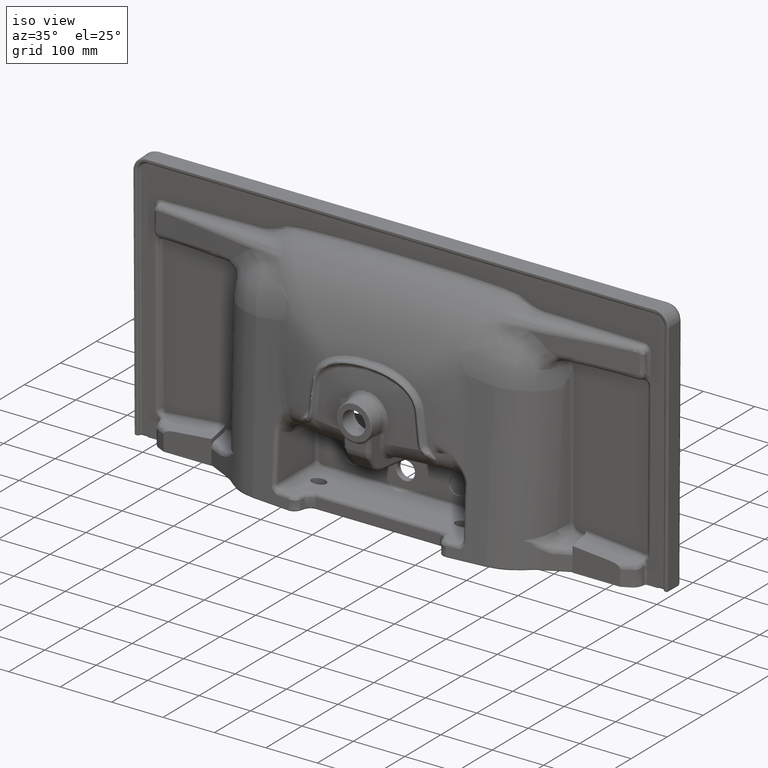
[diagram: clean part render]
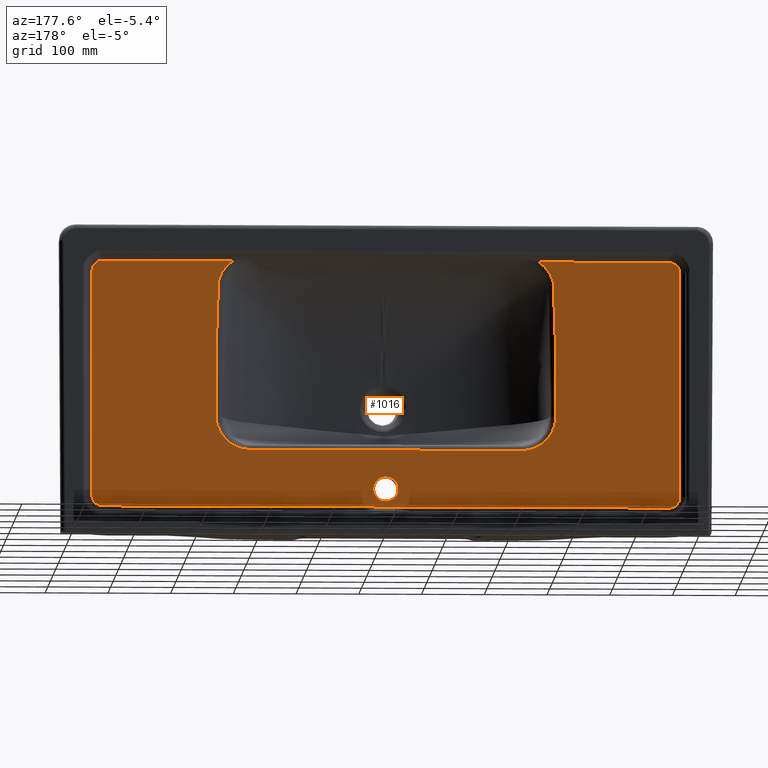
[diagram: tour spotlight — one face highlighted and labeled with its STEP entity id]
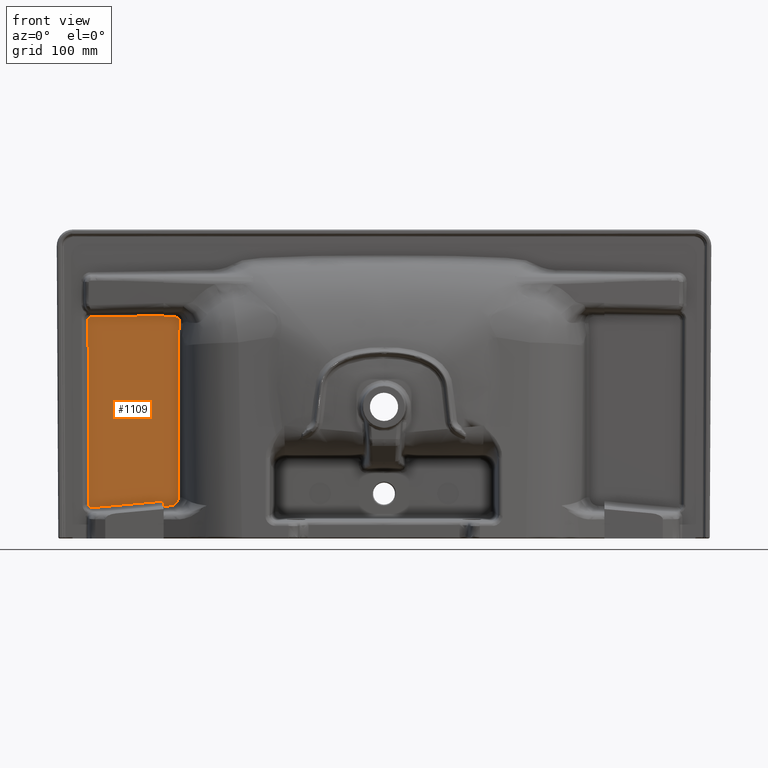
[diagram: tour spotlight — one face highlighted and labeled with its STEP entity id]
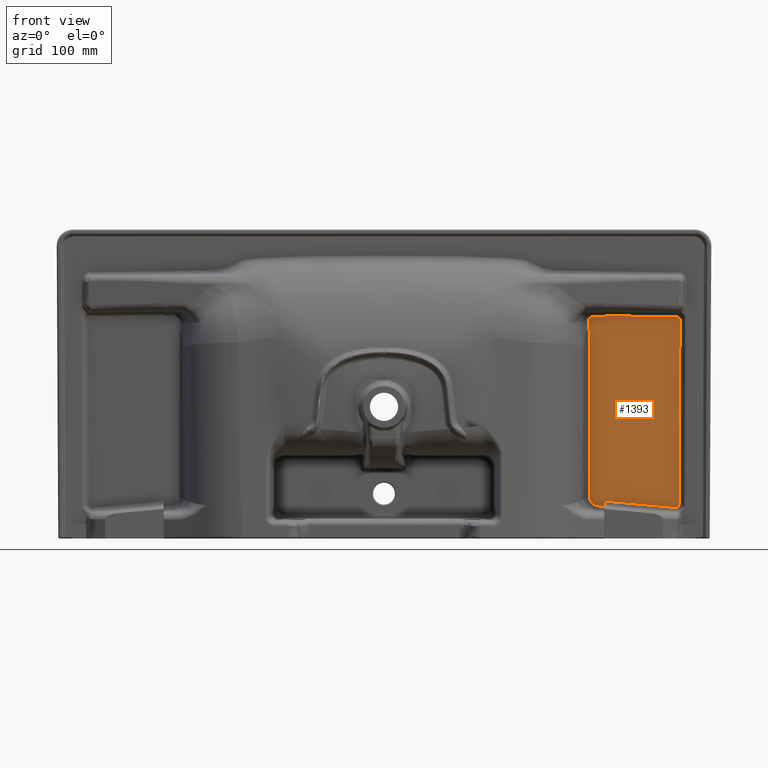
[diagram: tour spotlight — one face highlighted and labeled with its STEP entity id]
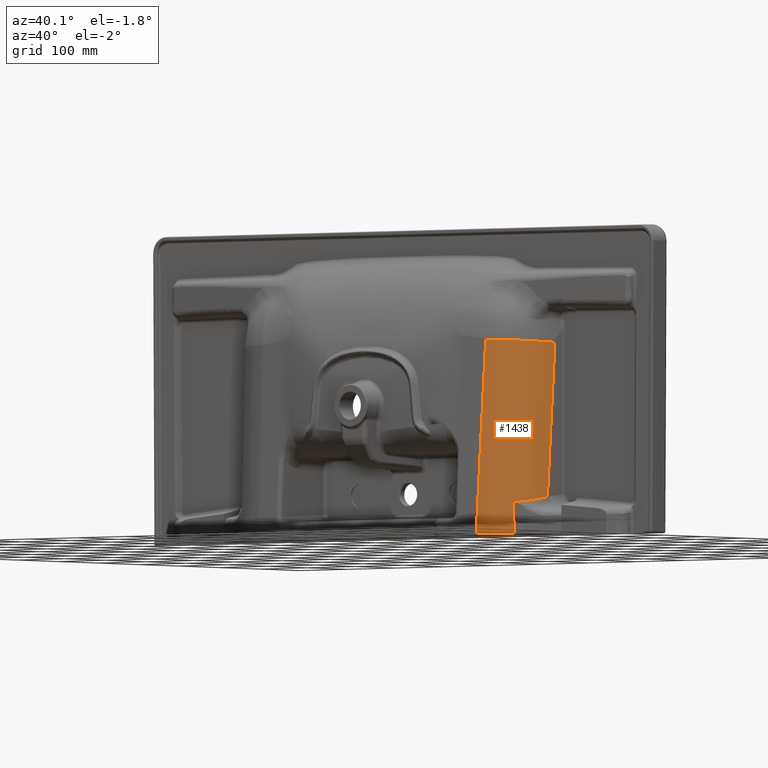
[diagram: tour spotlight — one face highlighted and labeled with its STEP entity id]
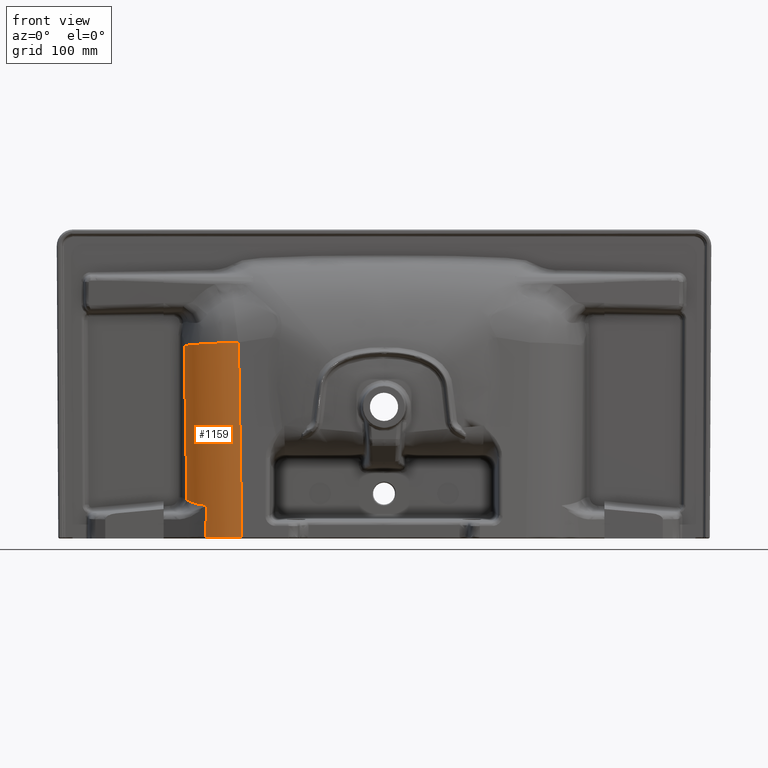
[diagram: tour spotlight — one face highlighted and labeled with its STEP entity id]
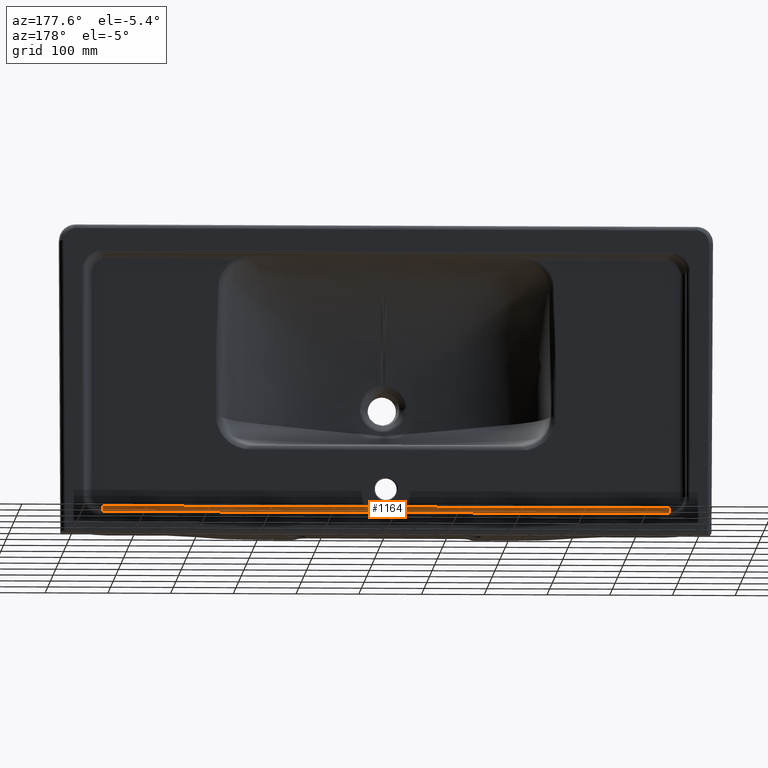
[diagram: tour spotlight — one face highlighted and labeled with its STEP entity id]
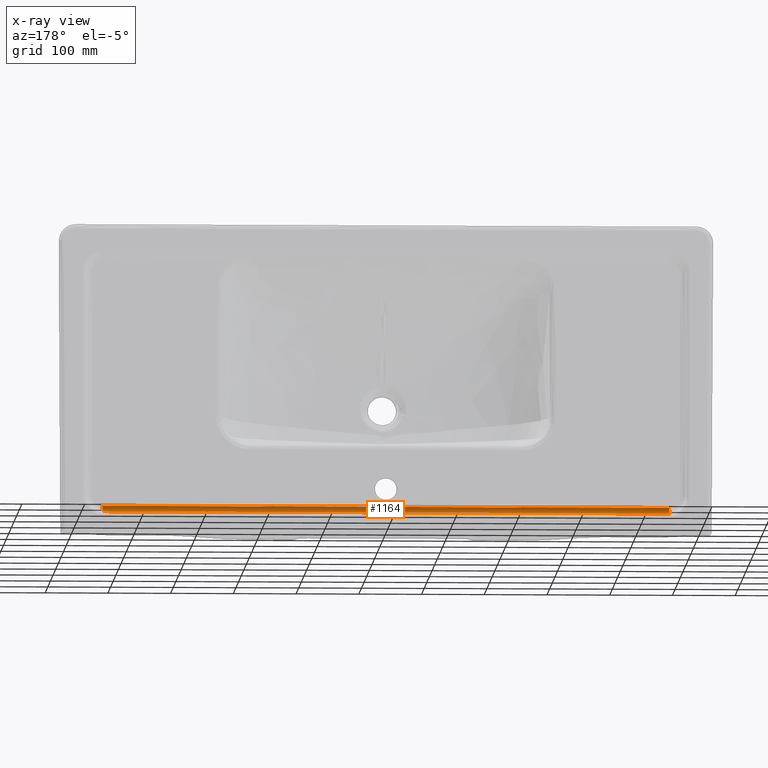
[diagram: x-ray of the same camera — body ghosted, this tour face saturated]
A machine part: a face-by-face anatomy tour. The part has 573 B-rep faces; the first image is the clean iso view, then the 6 largest visible faces are spotlighted one at a time (largest first), each with its STEP entity span.

Face 1 — auxiliary view, entity #1016. In plain terms, the highlighted planar face has unit normal (0, 1, 0).
Definition (entity closure, byte-faithful):
#606=PLANE('',#8693);
#703=FACE_BOUND('',#2195,.T.);
#704=FACE_BOUND('',#2196,.T.);
#724=CIRCLE('',#8668,19.5);
#729=CIRCLE('',#8691,17.);
#730=CIRCLE('',#8692,17.);
#1016=ADVANCED_FACE('',(#703,#704),#606,.T.);
#2195=EDGE_LOOP('',(#3814));
#2196=EDGE_LOOP('',(#3815,#3816,#3817,#3818,#3819,#3820,#3821,#3822,#3823,
#3824,#3825,#3826,#3827,#3828,#3829,#3830));
#2818=B_SPLINE_CURVE_WITH_KNOTS('',3,(#10964,#10965,#10966,#10967,#10968,
#10969,#10970),.UNSPECIFIED.,.F.,.F.,(4,3,4),(0.,0.488828419280423,1.),
 .UNSPECIFIED.);
#2819=B_SPLINE_CURVE_WITH_KNOTS('',3,(#10972,#10973,#10974,#10975,#10976,
#10977,#10978,#10979),.UNSPECIFIED.,.F.,.F.,(4,2,2,4),(0.,0.25,0.5,1.),
 .UNSPECIFIED.);
#2820=B_SPLINE_CURVE_WITH_KNOTS('',3,(#10981,#10982,#10983,#10984,#10985,
#10986,#10987,#10988,#10989,#10990),.UNSPECIFIED.,.F.,.F.,(4,3,3,4),(0.,
0.198783833394252,0.993919166971261,1.),.UNSPECIFIED.);
#2821=B_SPLINE_CURVE_WITH_KNOTS('',3,(#10992,#10993,#10994,#10995,#10996,
#10997,#10998,#10999,#11000,#11001),.UNSPECIFIED.,.F.,.F.,(4,3,3,4),(0.,
0.115408020605627,0.860685326046435,1.),.UNSPECIFIED.);
#2822=B_SPLINE_CURVE_WITH_KNOTS('',3,(#11003,#11004,#11005,#11006,#11007,
#11008,#11009,#11010,#11011,#11012,#11013,#11014,#11015,#11016,#11017,#11018,
#11019,#11020,#11021,#11022),.UNSPECIFIED.,.F.,.F.,(4,2,2,2,2,2,2,2,2,4),
(0.,0.0624999999999998,0.0937499999999998,0.125,0.1875,0.21875,0.25,0.375,
0.5,1.),.UNSPECIFIED.);
#2823=B_SPLINE_CURVE_WITH_KNOTS('',3,(#11024,#11025,#11026,#11027,#11028,
#11029,#11030,#11031,#11032,#11033,#11034,#11035,#11036,#11037,#11038,#11039),
 .UNSPECIFIED.,.F.,.F.,(4,2,2,2,2,2,2,4),(0.,0.25,0.375,0.5,0.625,0.75,
0.875,1.),.UNSPECIFIED.);
#2824=B_SPLINE_CURVE_WITH_KNOTS('',3,(#11043,#11044,#11045,#11046,#11047,
#11048,#11049,#11050,#11051,#11052,#11053,#11054,#11055,#11056,#11057,#11058),
 .UNSPECIFIED.,.F.,.F.,(4,2,2,2,2,2,2,4),(0.,0.249999999999999,0.374999999999999,
0.499999999999999,0.624999999999999,0.75,0.875,1.),.UNSPECIFIED.);
#2825=B_SPLINE_CURVE_WITH_KNOTS('',3,(#11060,#11061,#11062,#11063,#11064,
#11065,#11066,#11067,#11068,#11069,#11070,#11071,#11072,#11073,#11074,#11075,
#11076,#11077,#11078,#11079),.UNSPECIFIED.,.F.,.F.,(4,2,2,2,2,2,2,2,2,4),
(0.,0.0625,0.09375,0.125,0.1875,0.21875,0.25,0.375,0.5,1.),
 .UNSPECIFIED.);
#2826=B_SPLINE_CURVE_WITH_KNOTS('',3,(#11081,#11082,#11083,#11084,#11085,
#11086,#11087,#11088,#11089,#11090),.UNSPECIFIED.,.F.,.F.,(4,3,3,4),(0.,
0.115408020605627,0.860685326046435,1.),.UNSPECIFIED.);
#2827=B_SPLINE_CURVE_WITH_KNOTS('',3,(#11092,#11093,#11094,#11095,#11096,
#11097,#11098,#11099,#11100,#11101),.UNSPECIFIED.,.F.,.F.,(4,3,3,4),(0.,
0.198783833394252,0.993919166971261,1.),.UNSPECIFIED.);
#2828=B_SPLINE_CURVE_WITH_KNOTS('',3,(#11103,#11104,#11105,#11106,#11107,
#11108,#11109,#11110),.UNSPECIFIED.,.F.,.F.,(4,2,2,4),(0.,0.249999999999998,
0.499999999999997,1.),.UNSPECIFIED.);
#2829=B_SPLINE_CURVE_WITH_KNOTS('',3,(#11112,#11113,#11114,#11115,#11116,
#11117,#11118),.UNSPECIFIED.,.F.,.F.,(4,3,4),(0.,0.488828419280423,1.),
 .UNSPECIFIED.);
#3814=ORIENTED_EDGE('',*,*,#7170,.T.);
#3815=ORIENTED_EDGE('',*,*,#7258,.T.);
#3816=ORIENTED_EDGE('',*,*,#7259,.T.);
#3817=ORIENTED_EDGE('',*,*,#7260,.T.);
#3818=ORIENTED_EDGE('',*,*,#7261,.T.);
#3819=ORIENTED_EDGE('',*,*,#7262,.T.);
#3820=ORIENTED_EDGE('',*,*,#7263,.T.);
#3821=ORIENTED_EDGE('',*,*,#7264,.T.);
#3822=ORIENTED_EDGE('',*,*,#7265,.T.);
#3823=ORIENTED_EDGE('',*,*,#7266,.T.);
#3824=ORIENTED_EDGE('',*,*,#7267,.F.);
#3825=ORIENTED_EDGE('',*,*,#7268,.F.);
#3826=ORIENTED_EDGE('',*,*,#7269,.F.);
#3827=ORIENTED_EDGE('',*,*,#7270,.F.);
#3828=ORIENTED_EDGE('',*,*,#7271,.F.);
#3829=ORIENTED_EDGE('',*,*,#7272,.F.);
#3830=ORIENTED_EDGE('',*,*,#7273,.F.);
#6390=VERTEX_POINT('',#9994);
#6477=VERTEX_POINT('',#10960);
#6478=VERTEX_POINT('',#10961);
#6479=VERTEX_POINT('',#10963);
#6480=VERTEX_POINT('',#10971);
#6481=VERTEX_POINT('',#10980);
#6482=VERTEX_POINT('',#10991);
#6483=VERTEX_POINT('',#11002);
#6484=VERTEX_POINT('',#11023);
#6485=VERTEX_POINT('',#11040);
#6486=VERTEX_POINT('',#11042);
#6487=VERTEX_POINT('',#11059);
#6488=VERTEX_POINT('',#11080);
#6489=VERTEX_POINT('',#11091);
#6490=VERTEX_POINT('',#11102);
#6491=VERTEX_POINT('',#11111);
#6492=VERTEX_POINT('',#11119);
#7170=EDGE_CURVE('',#6390,#6390,#724,.T.);
#7258=EDGE_CURVE('',#6477,#6478,#8518,.T.);
#7259=EDGE_CURVE('',#6478,#6479,#729,.T.);
#7260=EDGE_CURVE('',#6479,#6480,#2818,.T.);
#7261=EDGE_CURVE('',#6480,#6481,#2819,.T.);
#7262=EDGE_CURVE('',#6481,#6482,#2820,.T.);
#7263=EDGE_CURVE('',#6482,#6483,#2821,.T.);
#7264=EDGE_CURVE('',#6483,#6484,#2822,.T.);
#7265=EDGE_CURVE('',#6484,#6485,#2823,.T.);
#7266=EDGE_CURVE('',#6485,#6486,#8519,.T.);
#7267=EDGE_CURVE('',#6487,#6486,#2824,.T.);
#7268=EDGE_CURVE('',#6488,#6487,#2825,.T.);
#7269=EDGE_CURVE('',#6489,#6488,#2826,.T.);
#7270=EDGE_CURVE('',#6490,#6489,#2827,.T.);
#7271=EDGE_CURVE('',#6491,#6490,#2828,.T.);
#7272=EDGE_CURVE('',#6492,#6491,#2829,.T.);
#7273=EDGE_CURVE('',#6477,#6492,#730,.T.);
#8518=LINE('',#10959,#8594);
#8519=LINE('',#11041,#8595);
#8594=VECTOR('',#9152,1.);
#8595=VECTOR('',#9155,1.);
#8668=AXIS2_PLACEMENT_3D('',#9993,#9087,#9088);
#8691=AXIS2_PLACEMENT_3D('',#10962,#9153,#9154);
#8692=AXIS2_PLACEMENT_3D('',#11120,#9156,#9157);
#8693=AXIS2_PLACEMENT_3D('',#11121,#9158,#9159);
#9087=DIRECTION('',(0.,-1.,0.));
#9088=DIRECTION('',(0.,0.,0.999999999999999));
#9152=DIRECTION('',(-1.,0.,0.));
#9153=DIRECTION('',(0.,1.,0.));
#9154=DIRECTION('',(0.,0.,1.));
#9155=DIRECTION('',(1.,0.,-1.0707705283783E-018));
#9156=DIRECTION('',(0.,-1.,0.));
#9157=DIRECTION('',(0.,0.,1.));
#9158=DIRECTION('',(0.,1.,0.));
#9159=DIRECTION('',(0.,0.,1.));
#9993=CARTESIAN_POINT('',(-4.,-29.1168494463141,-166.819183778549));
#9994=CARTESIAN_POINT('',(-4.,-29.1168494463141,-147.319183778549));
#10959=CARTESIAN_POINT('',(-4.,-29.1168494463141,-195.68459482305));
#10960=CARTESIAN_POINT('',(447.598225316961,-29.1168494463141,-195.68459482305));
#10961=CARTESIAN_POINT('',(-455.598225316961,-29.1168494463141,-195.68459482305));
#10962=CARTESIAN_POINT('',(-455.598225316961,-29.1168494463141,-178.684594823051));
#10963=CARTESIAN_POINT('',(-472.598874677878,-29.1168494322487,-178.687350839631));
#10964=CARTESIAN_POINT('',(-472.599524279501,-29.1168494463141,-178.687246091307));
#10965=CARTESIAN_POINT('',(-472.608622648945,-29.1168494463141,-120.343810376227));
#10966=CARTESIAN_POINT('',(-472.610168036991,-29.1168494463141,-62.0003736188182));
#10967=CARTESIAN_POINT('',(-472.611123511241,-29.1168494463141,-3.6569372021398));
#10968=CARTESIAN_POINT('',(-472.612122657904,-29.1168494463141,57.3532362706169));
#10969=CARTESIAN_POINT('',(-472.611805841716,-29.1168494463141,118.363409758464));
#10970=CARTESIAN_POINT('',(-472.611805854897,-29.1168494463141,179.373583239402));
#10971=CARTESIAN_POINT('',(-472.611805854897,-29.1168494463141,179.373583239402));
#10972=CARTESIAN_POINT('',(-472.611805854897,-29.1168494463141,179.373583239402));
#10973=CARTESIAN_POINT('',(-472.611805855392,-29.1168494463141,181.669692296067));
#10974=CARTESIAN_POINT('',(-472.193227324863,-29.1168494463141,183.918043485965));
#10975=CARTESIAN_POINT('',(-470.542845019446,-29.1168494463141,188.178181041233));
#10976=CARTESIAN_POINT('',(-469.32377390507,-29.1168494463141,190.135582571955));
#10977=CARTESIAN_POINT('',(-464.664533368967,-29.1168494463141,195.121609512111));
#10978=CARTESIAN_POINT('',(-460.210237210118,-29.1168494463141,197.150343747395));
#10979=CARTESIAN_POINT('',(-455.611803578279,-29.1168494463141,197.150343103348));
#10980=CARTESIAN_POINT('',(-455.611803578279,-29.1168494463141,197.150343103348));
#10981=CARTESIAN_POINT('',(-455.611803578279,-29.1168494463141,197.150343103348));
#10982=CARTESIAN_POINT('',(-448.945136911612,-29.1168494463141,197.150342169629));
#10983=CARTESIAN_POINT('',(-442.278470244946,-29.1168494463141,197.150341235905));
#10984=CARTESIAN_POINT('',(-435.611803578279,-29.1168494463141,197.150340302175));
#10985=CARTESIAN_POINT('',(-408.945136911613,-29.1168494463141,197.150336567254));
#10986=CARTESIAN_POINT('',(-382.278470244946,-29.1168494463141,197.150332832239));
#10987=CARTESIAN_POINT('',(-355.61180357828,-29.1168494463141,197.150329097061));
#10988=CARTESIAN_POINT('',(-355.407869052187,-29.1168494463141,197.150329068496));
#10989=CARTESIAN_POINT('',(-355.203934526093,-29.1168494463141,197.150329039931));
#10990=CARTESIAN_POINT('',(-355.,-29.1168494463141,197.150329011366));
#10991=CARTESIAN_POINT('',(-355.,-29.1168494463141,197.150335524309));
#10992=CARTESIAN_POINT('',(-354.999999999998,-29.1168494463141,197.150342037253));
#10993=CARTESIAN_POINT('',(-350.870601192758,-29.1168494463141,197.150341458895));
#10994=CARTESIAN_POINT('',(-346.741202385519,-29.1168494463141,197.150340880536));
#10995=CARTESIAN_POINT('',(-342.611803578279,-29.1168494463141,197.150340302175));
#10996=CARTESIAN_POINT('',(-315.945136911613,-29.1168494463141,197.150336567254));
#10997=CARTESIAN_POINT('',(-289.278470244946,-29.1168494463141,197.150332832239));
#10998=CARTESIAN_POINT('',(-262.61180357828,-29.1168494463141,197.150329097061));
#10999=CARTESIAN_POINT('',(-257.627004034575,-29.1168494463141,197.150328398844));
#11000=CARTESIAN_POINT('',(-252.64220449087,-29.1168494463141,197.150327700622));
#11001=CARTESIAN_POINT('',(-247.657404947165,-29.1168494463141,197.150327002393));
#11002=CARTESIAN_POINT('',(-247.657404947165,-29.1168494463141,197.150327002393));
#11003=CARTESIAN_POINT('',(-247.657404947165,-29.116849446314,197.150327002393));
#11004=CARTESIAN_POINT('',(-252.198993862629,-29.1168494463141,194.201439899744));
#11005=CARTESIAN_POINT('',(-256.238854205781,-29.1168494463141,190.644363906063));
#11006=CARTESIAN_POINT('',(-261.426169018883,-29.1168494463141,184.510715879622));
#11007=CARTESIAN_POINT('',(-263.026533924848,-29.1168494463141,182.307230628682));
#11008=CARTESIAN_POINT('',(-265.845668889303,-29.1168494463141,177.736138556918));
#11009=CARTESIAN_POINT('',(-267.073328735197,-29.116849446314,175.364190306603));
#11010=CARTESIAN_POINT('',(-270.242940623209,-29.1168494463141,168.004506964576));
#11011=CARTESIAN_POINT('',(-271.658581121936,-29.1168494463139,162.717460358311));
#11012=CARTESIAN_POINT('',(-272.692491193268,-29.1168494463139,154.803161826837));
#11013=CARTESIAN_POINT('',(-272.846424921194,-29.1168494463143,152.147765303446));
#11014=CARTESIAN_POINT('',(-273.068273967549,-29.1168494463143,146.829170272264));
#11015=CARTESIAN_POINT('',(-273.163634911868,-29.1168494463141,144.168461119325));
#11016=CARTESIAN_POINT('',(-273.536349964021,-29.1168494463141,130.855474282863));
#11017=CARTESIAN_POINT('',(-273.606298752937,-29.1168494463142,120.188613271256));
#11018=CARTESIAN_POINT('',(-273.924742809917,-29.1168494463142,98.868552365905));
#11019=CARTESIAN_POINT('',(-274.128619595299,-29.1168494463142,88.2092029732213));
#11020=CARTESIAN_POINT('',(-275.000937331322,-29.1168494463142,34.9103731177732));
#11021=CARTESIAN_POINT('',(-275.255336882416,-29.1168494463141,-7.73550095258585));
#11022=CARTESIAN_POINT('',(-275.012085118657,-29.1168494463141,-50.3801051524352));
#11023=CARTESIAN_POINT('',(-275.012085118657,-29.1168494463141,-50.3801051524352));
#11024=CARTESIAN_POINT('',(-275.012087892108,-29.1168494463141,-50.3801051682554));
#11025=CARTESIAN_POINT('',(-274.971057358915,-29.1168494463141,-57.570170760826));
#11026=CARTESIAN_POINT('',(-273.465146323814,-29.1168494463146,-64.7013578230284));
#11027=CARTESIAN_POINT('',(-269.303365564353,-29.1168494463146,-74.4819331722205));
#11028=CARTESIAN_POINT('',(-267.578780822968,-29.1168494463143,-77.6400510310102));
#11029=CARTESIAN_POINT('',(-263.553177393673,-29.1168494463144,-83.5446097832931));
#11030=CARTESIAN_POINT('',(-261.279483874704,-29.1168494463143,-86.264216994831));
#11031=CARTESIAN_POINT('',(-256.222601349241,-29.1168494463143,-91.2490460521171));
#11032=CARTESIAN_POINT('',(-253.407819420814,-29.1168494463144,-93.5296293577274));
#11033=CARTESIAN_POINT('',(-247.475343217792,-29.1168494463144,-97.4475181963257));
#11034=CARTESIAN_POINT('',(-244.34360144959,-29.1168494463145,-99.1075389317147));
#11035=CARTESIAN_POINT('',(-237.745396743482,-29.1168494463145,-101.823025306334));
#11036=CARTESIAN_POINT('',(-234.290796264427,-29.1168494463138,-102.864094301216));
#11037=CARTESIAN_POINT('',(-227.336887066924,-29.1168494463138,-104.243225856186));
#11038=CARTESIAN_POINT('',(-223.802590619664,-29.1168494463141,-104.597644542432));
#11039=CARTESIAN_POINT('',(-220.207665948996,-29.1168494463141,-104.597708193896));
#11040=CARTESIAN_POINT('',(-220.207665948996,-29.1168494463141,-104.597708193896));
#11041=CARTESIAN_POINT('',(3.33066907387547E-013,-29.1168494463141,-104.597708202375));
#11042=CARTESIAN_POINT('',(212.207665948996,-29.1168494463141,-104.597708193896));
#11043=CARTESIAN_POINT('',(267.012087892108,-29.1168494463141,-50.3801051682554));
#11044=CARTESIAN_POINT('',(266.971057358915,-29.1168494463141,-57.570170760826));
#11045=CARTESIAN_POINT('',(265.465146323814,-29.1168494463135,-64.7013578230284));
#11046=CARTESIAN_POINT('',(261.303365564353,-29.1168494463135,-74.4819331722205));
#11047=CARTESIAN_POINT('',(259.578780822969,-29.1168494463139,-77.6400510310101));
#11048=CARTESIAN_POINT('',(255.553177393673,-29.1168494463139,-83.5446097832929));
#11049=CARTESIAN_POINT('',(253.279483874704,-29.1168494463146,-86.2642169948311));
#11050=CARTESIAN_POINT('',(248.222601349241,-29.1168494463146,-91.2490460521171));
#11051=CARTESIAN_POINT('',(245.407819420814,-29.1168494463143,-93.5296293577274));
#11052=CARTESIAN_POINT('',(239.475343217792,-29.1168494463143,-97.4475181963257));
#11053=CARTESIAN_POINT('',(236.34360144959,-29.1168494463139,-99.1075389317147));
#11054=CARTESIAN_POINT('',(229.745396743482,-29.1168494463139,-101.823025306334));
#11055=CARTESIAN_POINT('',(226.290796264427,-29.1168494463135,-102.864094301216));
#11056=CARTESIAN_POINT('',(219.336887066924,-29.1168494463135,-104.243225856186));
#11057=CARTESIAN_POINT('',(215.802590619664,-29.1168494463141,-104.597644542432));
#11058=CARTESIAN_POINT('',(212.207665948996,-29.1168494463141,-104.597708193896));
#11059=CARTESIAN_POINT('',(267.012085118657,-29.1168494463141,-50.3801051524352));
#11060=CARTESIAN_POINT('',(239.657404947165,-29.116849446314,197.150327002393));
#11061=CARTESIAN_POINT('',(244.19899386263,-29.116849446314,194.201439899744));
#11062=CARTESIAN_POINT('',(248.238854205782,-29.116849446314,190.644363906062));
#11063=CARTESIAN_POINT('',(253.426169018884,-29.116849446314,184.510715879622));
#11064=CARTESIAN_POINT('',(255.026533924848,-29.1168494463141,182.307230628682));
#11065=CARTESIAN_POINT('',(257.845668889303,-29.116849446314,177.736138556918));
#11066=CARTESIAN_POINT('',(259.073328735197,-29.116849446314,175.364190306603));
#11067=CARTESIAN_POINT('',(262.242940623209,-29.116849446314,168.004506964576));
#11068=CARTESIAN_POINT('',(263.658581121935,-29.1168494463141,162.717460358312));
#11069=CARTESIAN_POINT('',(264.692491193268,-29.1168494463141,154.803161826837));
#11070=CARTESIAN_POINT('',(264.846424921194,-29.1168494463138,152.147765303446));
#11071=CARTESIAN_POINT('',(265.068273967549,-29.1168494463138,146.829170272264));
#11072=CARTESIAN_POINT('',(265.163634911868,-29.116849446314,144.168461119324));
#11073=CARTESIAN_POINT('',(265.536349964021,-29.116849446314,130.855474282863));
#11074=CARTESIAN_POINT('',(265.606298752937,-29.116849446314,120.188613271255));
#11075=CARTESIAN_POINT('',(265.924742809917,-29.116849446314,98.8685523659046));
#11076=CARTESIAN_POINT('',(266.128619595299,-29.1168494463143,88.209202973221));
#11077=CARTESIAN_POINT('',(267.000937331321,-29.1168494463143,34.9103731177729));
#11078=CARTESIAN_POINT('',(267.255336882416,-29.1168494463141,-7.73550095258582));
#11079=CARTESIAN_POINT('',(267.012085118657,-29.1168494463141,-50.3801051524352));
#11080=CARTESIAN_POINT('',(239.657404947165,-29.1168494463141,197.150327002393));
#11081=CARTESIAN_POINT('',(346.999999999998,-29.1168494463141,197.150342037253));
#11082=CARTESIAN_POINT('',(342.870601192758,-29.1168494463141,197.150341458895));
#11083=CARTESIAN_POINT('',(338.741202385519,-29.1168494463141,197.150340880536));
#11084=CARTESIAN_POINT('',(334.611803578279,-29.1168494463141,197.150340302175));
#11085=CARTESIAN_POINT('',(307.945136911613,-29.1168494463141,197.150336567254));
#11086=CARTESIAN_POINT('',(281.278470244946,-29.1168494463141,197.150332832239));
#11087=CARTESIAN_POINT('',(254.61180357828,-29.1168494463141,197.150329097061));
#11088=CARTESIAN_POINT('',(249.627004034575,-29.1168494463141,197.150328398844));
#11089=CARTESIAN_POINT('',(244.64220449087,-29.1168494463141,197.150327700622));
#11090=CARTESIAN_POINT('',(239.657404947165,-29.1168494463141,197.150327002393));
#11091=CARTESIAN_POINT('',(347.,-29.1168494463141,197.150335524309));
#11092=CARTESIAN_POINT('',(447.611803578279,-29.1168494463141,197.150343103348));
#11093=CARTESIAN_POINT('',(440.945136911612,-29.1168494463141,197.150342169629));
#11094=CARTESIAN_POINT('',(434.278470244946,-29.1168494463141,197.150341235905));
#11095=CARTESIAN_POINT('',(427.611803578279,-29.1168494463141,197.150340302175));
#11096=CARTESIAN_POINT('',(400.945136911613,-29.1168494463141,197.150336567254));
#11097=CARTESIAN_POINT('',(374.278470244946,-29.1168494463141,197.150332832239));
#11098=CARTESIAN_POINT('',(347.61180357828,-29.1168494463141,197.150329097061));
#11099=CARTESIAN_POINT('',(347.407869052187,-29.1168494463141,197.150329068496));
#11100=CARTESIAN_POINT('',(347.203934526093,-29.1168494463141,197.150329039931));
#11101=CARTESIAN_POINT('',(347.,-29.1168494463141,197.150329011366));
#11102=CARTESIAN_POINT('',(447.611803578279,-29.1168494463141,197.150343103348));
#11103=CARTESIAN_POINT('',(464.611805854897,-29.1168494463141,179.373583239402));
#11104=CARTESIAN_POINT('',(464.611805855392,-29.1168494463141,181.669692296067));
#11105=CARTESIAN_POINT('',(464.193227324863,-29.1168494463141,183.918043485965));
#11106=CARTESIAN_POINT('',(462.542845019446,-29.1168494463141,188.178181041233));
#11107=CARTESIAN_POINT('',(461.323773905069,-29.1168494463141,190.135582571956));
#11108=CARTESIAN_POINT('',(456.664533368967,-29.1168494463141,195.121609512111));
#11109=CARTESIAN_POINT('',(452.210237210118,-29.1168494463141,197.150343747395));
#11110=CARTESIAN_POINT('',(447.611803578279,-29.1168494463141,197.150343103348));
#11111=CARTESIAN_POINT('',(464.611805854897,-29.1168494463141,179.373583239402));
#11112=CARTESIAN_POINT('',(464.599524279501,-29.1168494463141,-178.687246091307));
#11113=CARTESIAN_POINT('',(464.608622648946,-29.1168494463141,-120.343810376227));
#11114=CARTESIAN_POINT('',(464.610168036991,-29.1168494463141,-62.0003736188182));
#11115=CARTESIAN_POINT('',(464.611123511241,-29.1168494463141,-3.6569372021398));
#11116=CARTESIAN_POINT('',(464.612122657904,-29.1168494463141,57.3532362706169));
#11117=CARTESIAN_POINT('',(464.611805841716,-29.1168494463141,118.363409758464));
#11118=CARTESIAN_POINT('',(464.611805854897,-29.1168494463141,179.373583239402));
#11119=CARTESIAN_POINT('',(464.598874677878,-29.1168494322487,-178.687350839631));
#11120=CARTESIAN_POINT('',(447.598225316961,-29.1168494463141,-178.684594823051));
#11121=CARTESIAN_POINT('',(661.189391889384,-29.1168494463141,-270.68459482305));

Face 2 — front view, entity #1109. In plain terms, the highlighted planar face has unit normal (0, 1, 0).
Definition (entity closure, byte-faithful):
#611=PLANE('',#8770);
#1109=ADVANCED_FACE('',(#1707),#611,.F.);
#1707=FACE_OUTER_BOUND('',#2289,.T.);
#2289=EDGE_LOOP('',(#4215,#4216,#4217,#4218,#4219,#4220,#4221,#4222,#4223,
#4224,#4225,#4226,#4227,#4228,#4229,#4230,#4231,#4232,#4233,#4234));
#2993=B_SPLINE_CURVE_WITH_KNOTS('',3,(#14442,#14443,#14444,#14445),
 .UNSPECIFIED.,.F.,.F.,(4,4),(0.,1.),.UNSPECIFIED.);
#2994=B_SPLINE_CURVE_WITH_KNOTS('',3,(#14447,#14448,#14449,#14450),
 .UNSPECIFIED.,.F.,.F.,(4,4),(0.,1.),.UNSPECIFIED.);
#2995=B_SPLINE_CURVE_WITH_KNOTS('',3,(#14452,#14453,#14454,#14455,#14456,
#14457,#14458,#14459,#14460,#14461),.UNSPECIFIED.,.F.,.F.,(4,3,3,4),(0.,
0.598420842421334,0.898415895779291,1.),.UNSPECIFIED.);
#2996=B_SPLINE_CURVE_WITH_KNOTS('',3,(#14463,#14464,#14465,#14466),
 .UNSPECIFIED.,.F.,.F.,(4,4),(0.,1.),.UNSPECIFIED.);
#2997=B_SPLINE_CURVE_WITH_KNOTS('',3,(#14468,#14469,#14470,#14471,#14472,
#14473,#14474,#14475,#14476,#14477),.UNSPECIFIED.,.F.,.F.,(4,3,3,4),(0.,
0.074879589619726,0.374397948101519,1.),.UNSPECIFIED.);
#2998=B_SPLINE_CURVE_WITH_KNOTS('',3,(#14479,#14480,#14481,#14482),
 .UNSPECIFIED.,.F.,.F.,(4,4),(0.,1.),.UNSPECIFIED.);
#2999=B_SPLINE_CURVE_WITH_KNOTS('',3,(#14484,#14485,#14486,#14487),
 .UNSPECIFIED.,.F.,.F.,(4,4),(0.,1.),.UNSPECIFIED.);
#3000=B_SPLINE_CURVE_WITH_KNOTS('',3,(#14489,#14490,#14491,#14492,#14493,
#14494,#14495),.UNSPECIFIED.,.F.,.F.,(4,3,4),(0.,0.703353309136683,1.),
 .UNSPECIFIED.);
#3001=B_SPLINE_CURVE_WITH_KNOTS('',3,(#14497,#14498,#14499,#14500),
 .UNSPECIFIED.,.F.,.F.,(4,4),(0.,1.),.UNSPECIFIED.);
#3002=B_SPLINE_CURVE_WITH_KNOTS('',3,(#14502,#14503,#14504,#14505,#14506,
#14507,#14508,#14509,#14510,#14511,#14512,#14513,#14514,#14515,#14516,#14517),
 .UNSPECIFIED.,.F.,.F.,(4,3,3,3,3,4),(0.,0.104811924285015,0.279658314175291,
0.384470238460307,0.803717935600369,1.),.UNSPECIFIED.);
#3003=B_SPLINE_CURVE_WITH_KNOTS('',3,(#14521,#14522,#14523,#14524),
 .UNSPECIFIED.,.F.,.F.,(4,4),(0.,1.),.UNSPECIFIED.);
#3004=B_SPLINE_CURVE_WITH_KNOTS('',3,(#14526,#14527,#14528,#14529,#14530,
#14531),.UNSPECIFIED.,.F.,.F.,(4,2,4),(0.,0.5,1.),.UNSPECIFIED.);
#3005=B_SPLINE_CURVE_WITH_KNOTS('',3,(#14535,#14536,#14537,#14538),
 .UNSPECIFIED.,.F.,.F.,(4,4),(0.,1.),.UNSPECIFIED.);
#3006=B_SPLINE_CURVE_WITH_KNOTS('',3,(#14540,#14541,#14542,#14543,#14544,
#14545),.UNSPECIFIED.,.F.,.F.,(4,2,4),(0.,0.5,1.),.UNSPECIFIED.);
#3007=B_SPLINE_CURVE_WITH_KNOTS('',3,(#14547,#14548,#14549,#14550),
 .UNSPECIFIED.,.F.,.F.,(4,4),(0.,1.),.UNSPECIFIED.);
#4215=ORIENTED_EDGE('',*,*,#7515,.T.);
#4216=ORIENTED_EDGE('',*,*,#7516,.T.);
#4217=ORIENTED_EDGE('',*,*,#7517,.T.);
#4218=ORIENTED_EDGE('',*,*,#7518,.T.);
#4219=ORIENTED_EDGE('',*,*,#7519,.T.);
#4220=ORIENTED_EDGE('',*,*,#7520,.T.);
#4221=ORIENTED_EDGE('',*,*,#7521,.T.);
#4222=ORIENTED_EDGE('',*,*,#7522,.T.);
#4223=ORIENTED_EDGE('',*,*,#7523,.T.);
#4224=ORIENTED_EDGE('',*,*,#7524,.T.);
#4225=ORIENTED_EDGE('',*,*,#7525,.T.);
#4226=ORIENTED_EDGE('',*,*,#7526,.T.);
#4227=ORIENTED_EDGE('',*,*,#7527,.T.);
#4228=ORIENTED_EDGE('',*,*,#7528,.T.);
#4229=ORIENTED_EDGE('',*,*,#7529,.T.);
#4230=ORIENTED_EDGE('',*,*,#7530,.T.);
#4231=ORIENTED_EDGE('',*,*,#7531,.T.);
#4232=ORIENTED_EDGE('',*,*,#7532,.T.);
#4233=ORIENTED_EDGE('',*,*,#7533,.T.);
#4234=ORIENTED_EDGE('',*,*,#7534,.T.);
#6645=VERTEX_POINT('',#14436);
#6646=VERTEX_POINT('',#14437);
#6647=VERTEX_POINT('',#14439);
#6648=VERTEX_POINT('',#14441);
#6649=VERTEX_POINT('',#14446);
#6650=VERTEX_POINT('',#14451);
#6651=VERTEX_POINT('',#14462);
#6652=VERTEX_POINT('',#14467);
#6653=VERTEX_POINT('',#14478);
#6654=VERTEX_POINT('',#14483);
#6655=VERTEX_POINT('',#14488);
#6656=VERTEX_POINT('',#14496);
#6657=VERTEX_POINT('',#14501);
#6658=VERTEX_POINT('',#14518);
#6659=VERTEX_POINT('',#14520);
#6660=VERTEX_POINT('',#14525);
#6661=VERTEX_POINT('',#14532);
#6662=VERTEX_POINT('',#14534);
#6663=VERTEX_POINT('',#14539);
#6664=VERTEX_POINT('',#14546);
#7515=EDGE_CURVE('',#6645,#6646,#8536,.T.);
#7516=EDGE_CURVE('',#6646,#6647,#8537,.T.);
#7517=EDGE_CURVE('',#6647,#6648,#8538,.T.);
#7518=EDGE_CURVE('',#6648,#6649,#2993,.T.);
#7519=EDGE_CURVE('',#6649,#6650,#2994,.T.);
#7520=EDGE_CURVE('',#6650,#6651,#2995,.T.);
#7521=EDGE_CURVE('',#6651,#6652,#2996,.T.);
#7522=EDGE_CURVE('',#6652,#6653,#2997,.T.);
#7523=EDGE_CURVE('',#6653,#6654,#2998,.T.);
#7524=EDGE_CURVE('',#6654,#6655,#2999,.T.);
#7525=EDGE_CURVE('',#6655,#6656,#3000,.T.);
#7526=EDGE_CURVE('',#6656,#6657,#3001,.T.);
#7527=EDGE_CURVE('',#6657,#6658,#3002,.T.);
#7528=EDGE_CURVE('',#6658,#6659,#8539,.T.);
#7529=EDGE_CURVE('',#6659,#6660,#3003,.T.);
#7530=EDGE_CURVE('',#6660,#6661,#3004,.T.);
#7531=EDGE_CURVE('',#6661,#6662,#8540,.T.);
#7532=EDGE_CURVE('',#6662,#6663,#3005,.T.);
#7533=EDGE_CURVE('',#6663,#6664,#3006,.T.);
#7534=EDGE_CURVE('',#6664,#6645,#3007,.T.);
#8536=LINE('',#14435,#8612);
#8537=LINE('',#14438,#8613);
#8538=LINE('',#14440,#8614);
#8539=LINE('',#14519,#8615);
#8540=LINE('',#14533,#8616);
#8612=VECTOR('',#9328,1.);
#8613=VECTOR('',#9329,1.);
#8614=VECTOR('',#9330,1.);
#8615=VECTOR('',#9331,1.);
#8616=VECTOR('',#9332,1.);
#8770=AXIS2_PLACEMENT_3D('',#14551,#9333,#9334);
#9328=DIRECTION('',(-0.999897282626473,0.,-0.0143326269816669));
#9329=DIRECTION('',(0.,0.,1.));
#9330=DIRECTION('',(-0.999897282626473,0.,-0.0143326269816669));
#9331=DIRECTION('',(0.,0.,-1.));
#9332=DIRECTION('',(0.,0.,1.));
#9333=DIRECTION('',(0.,1.,0.));
#9334=DIRECTION('',(0.,0.,1.));
#14435=CARTESIAN_POINT('',(-314.337350935508,-41.1168494463141,115.739427748287));
#14436=CARTESIAN_POINT('',(-338.885110241825,-41.1168494463141,115.38755772775));
#14437=CARTESIAN_POINT('',(-355.,-41.1168494463141,115.156565297059));
#14438=CARTESIAN_POINT('',(-355.,-41.1168494463141,0.));
#14439=CARTESIAN_POINT('',(-355.,-41.1168494463141,116.489636535931));
#14440=CARTESIAN_POINT('',(-407.337350935508,-41.1168494463141,115.739427748287));
#14441=CARTESIAN_POINT('',(-466.765659561995,-41.1168494463141,114.887576468669));
#14442=CARTESIAN_POINT('',(-466.765659561995,-41.1168494463141,114.887576468669));
#14443=CARTESIAN_POINT('',(-467.627138455581,-41.1168494463141,114.875227944627));
#14444=CARTESIAN_POINT('',(-468.491243583448,-41.1168494463141,114.919179220376));
#14445=CARTESIAN_POINT('',(-469.347025712788,-41.1168494463141,115.01885528191));
#14446=CARTESIAN_POINT('',(-469.347025712788,-41.1168494463141,115.018855281913));
#14447=CARTESIAN_POINT('',(-469.347025712788,-41.1168494463141,115.018855281913));
#14448=CARTESIAN_POINT('',(-470.016817907331,-41.1168494463141,115.096868418329));
#14449=CARTESIAN_POINT('',(-470.686225789796,-41.1168494463141,115.038965759391));
#14450=CARTESIAN_POINT('',(-471.332724759151,-41.1168494463141,114.847288167246));
#14451=CARTESIAN_POINT('',(-471.332724759151,-41.1168494463141,114.847288167243));
#14452=CARTESIAN_POINT('',(-471.332724759151,-41.1168494463141,114.847288167243));
#14453=CARTESIAN_POINT('',(-471.772382636163,-41.1168494463141,114.716935966809));
#14454=CARTESIAN_POINT('',(-472.212053707502,-41.1168494463141,114.582733366165));
#14455=CARTESIAN_POINT('',(-472.63831830817,-41.1168494463141,114.413649850723));
#14456=CARTESIAN_POINT('',(-472.851846876915,-41.1168494463141,114.328950907873));
#14457=CARTESIAN_POINT('',(-473.063997238532,-41.1168494463141,114.236013227638));
#14458=CARTESIAN_POINT('',(-473.259854054477,-41.1168494463141,114.1159779485));
#14459=CARTESIAN_POINT('',(-473.326382028493,-41.1168494463141,114.075204775033));
#14460=CARTESIAN_POINT('',(-473.391091539776,-41.1168494463141,114.030816261256));
#14461=CARTESIAN_POINT('',(-473.450863863115,-41.1168494463141,113.980659583097));
#14462=CARTESIAN_POINT('',(-473.450863863115,-41.1168494463141,113.980659583097));
#14463=CARTESIAN_POINT('',(-473.450863863115,-41.1168494463141,113.980659583097));
#14464=CARTESIAN_POINT('',(-474.744947554048,-41.1168494463141,112.894756684031));
#14465=CARTESIAN_POINT('',(-475.491853700712,-41.1168494463141,111.247295707437));
#14466=CARTESIAN_POINT('',(-475.483004525692,-41.1168494463141,109.558573602303));
#14467=CARTESIAN_POINT('',(-475.483004525692,-41.1168494463141,109.558573602303));
#14468=CARTESIAN_POINT('',(-475.483004525692,-41.1168494463141,109.558573602303));
#14469=CARTESIAN_POINT('',(-475.444577208969,-41.1168494463141,102.225340950931));
#14470=CARTESIAN_POINT('',(-475.406155860297,-41.1168494463141,94.8921082682837));
#14471=CARTESIAN_POINT('',(-475.367740306728,-41.1168494463141,87.5588755552807));
#14472=CARTESIAN_POINT('',(-475.214078092454,-41.1168494463141,58.2259447031276));
#14473=CARTESIAN_POINT('',(-475.060510156155,-41.1168494463141,28.8930133569445));
#14474=CARTESIAN_POINT('',(-474.90703584685,-41.1168494463141,-0.439918478957553));
#14475=CARTESIAN_POINT('',(-474.586475052847,-41.1168494463141,-61.7074228731516));
#14476=CARTESIAN_POINT('',(-474.266321659292,-41.1168494463141,-122.974929400298));
#14477=CARTESIAN_POINT('',(-473.946578341889,-41.1168494463141,-184.242438066199));
#14478=CARTESIAN_POINT('',(-473.946578341889,-41.1168494463141,-184.242438066199));
#14479=CARTESIAN_POINT('',(-473.946578341889,-41.1168494463141,-184.242438066199));
#14480=CARTESIAN_POINT('',(-473.939284104892,-41.1168494463141,-185.640120845293));
#14481=CARTESIAN_POINT('',(-473.363030886379,-41.1168494463141,-187.006905516605));
#14482=CARTESIAN_POINT('',(-472.325192247099,-41.1168494463141,-187.944834639689));
#14483=CARTESIAN_POINT('',(-472.325192247099,-41.1168494463141,-187.944834639689));
#14484=CARTESIAN_POINT('',(-472.325192247099,-41.1168494463141,-187.944834639689));
#14485=CARTESIAN_POINT('',(-472.084541274323,-41.1168494463141,-188.162318887551));
#14486=CARTESIAN_POINT('',(-471.819587137404,-41.1168494463141,-188.355732316065));
#14487=CARTESIAN_POINT('',(-471.538407944697,-41.1168494463141,-188.517443634018));
#14488=CARTESIAN_POINT('',(-471.538407944697,-41.1168494463141,-188.517443634018));
#14489=CARTESIAN_POINT('',(-471.538407944697,-41.1168494463141,-188.517443634018));
#14490=CARTESIAN_POINT('',(-471.245200224186,-41.1168494463141,-188.686072779231));
#14491=CARTESIAN_POINT('',(-470.908652376218,-41.1168494463141,-188.771239264705));
#14492=CARTESIAN_POINT('',(-470.579666670197,-41.1168494463141,-188.849820186161));
#14493=CARTESIAN_POINT('',(-470.440250843048,-41.1168494463141,-188.883120794554));
#14494=CARTESIAN_POINT('',(-470.300104018016,-41.1168494463141,-188.913392882435));
#14495=CARTESIAN_POINT('',(-470.15965296937,-41.1168494463141,-188.942014662836));
#14496=CARTESIAN_POINT('',(-470.15965296937,-41.1168494463141,-188.942014662836));
#14497=CARTESIAN_POINT('',(-470.15965296937,-41.1168494463141,-188.942014662836));
#14498=CARTESIAN_POINT('',(-469.787781618869,-41.1168494463141,-189.017796369232));
#14499=CARTESIAN_POINT('',(-469.400816479587,-41.1168494463141,-189.039274774795));
#14500=CARTESIAN_POINT('',(-469.022853212428,-41.1168494463141,-189.004997420371));
#14501=CARTESIAN_POINT('',(-469.022853212427,-41.1168494463141,-189.004997420365));
#14502=CARTESIAN_POINT('',(-469.022853212427,-41.1168494463141,-189.004997420365));
#14503=CARTESIAN_POINT('',(-465.039201659865,-41.1168494463141,-188.643721476289));
#14504=CARTESIAN_POINT('',(-461.055550107303,-41.1168494463141,-188.282445532203));
#14505=CARTESIAN_POINT('',(-457.071898554743,-41.1168494463141,-187.9211695881));
#14506=CARTESIAN_POINT('',(-450.426403805006,-41.1168494463141,-187.318492030069));
#14507=CARTESIAN_POINT('',(-443.780909055273,-41.1168494463141,-186.715814472003));
#14508=CARTESIAN_POINT('',(-437.135414305542,-41.1168494463141,-186.11313691391));
#14509=CARTESIAN_POINT('',(-433.151762752985,-41.1168494463141,-185.751860969769));
#14510=CARTESIAN_POINT('',(-429.16811120043,-41.1168494463141,-185.390585025618));
#14511=CARTESIAN_POINT('',(-425.184459647875,-41.1168494463141,-185.029309081459));
#14512=CARTESIAN_POINT('',(-409.249853437656,-41.1168494463141,-183.584205304821));
#14513=CARTESIAN_POINT('',(-393.31524722745,-41.1168494463141,-182.139101528045));
#14514=CARTESIAN_POINT('',(-377.380641017248,-41.1168494463141,-180.693997751217));
#14515=CARTESIAN_POINT('',(-369.920427344831,-41.1168494463141,-180.017433623322));
#14516=CARTESIAN_POINT('',(-362.460213672416,-41.1168494463141,-179.340869495416));
#14517=CARTESIAN_POINT('',(-355.,-41.1168494463141,-178.664305367508));
#14518=CARTESIAN_POINT('',(-355.,-41.1168494463141,-178.664305367508));
#14519=CARTESIAN_POINT('',(-355.,-41.1168494463141,-270.68459482305));
#14520=CARTESIAN_POINT('',(-354.999999999981,-41.1168494463141,-187.098442330954));
#14521=CARTESIAN_POINT('',(-354.999999999981,-41.1168494463141,-187.098442330954));
#14522=CARTESIAN_POINT('',(-351.378471435167,-41.1168494463141,-186.770007191948));
#14523=CARTESIAN_POINT('',(-347.756942870353,-41.1168494463141,-186.441572052938));
#14524=CARTESIAN_POINT('',(-344.135414305541,-41.1168494463141,-186.113136913915));
#14525=CARTESIAN_POINT('',(-344.135414305541,-41.1168494463141,-186.113136913915));
#14526=CARTESIAN_POINT('',(-344.135414305541,-41.1168494463141,-186.113136913915));
#14527=CARTESIAN_POINT('',(-340.755699680783,-41.1168494463141,-185.806631795211));
#14528=CARTESIAN_POINT('',(-337.544081767051,-41.1168494463141,-184.33049271127));
#14529=CARTESIAN_POINT('',(-332.882773784857,-41.116849446314,-179.436918392039));
#14530=CARTESIAN_POINT('',(-331.569634676898,-41.1168494463141,-176.119812580563));
#14531=CARTESIAN_POINT('',(-331.569634676898,-41.1168494463141,-172.722713319954));
#14532=CARTESIAN_POINT('',(-331.569634676898,-41.1168494463141,-172.722713319954));
#14533=CARTESIAN_POINT('',(-331.569634676898,-41.1168494463141,255.155401173023));
#14534=CARTESIAN_POINT('',(-331.569634676898,-41.1168494463141,84.9759725357402));
#14535=CARTESIAN_POINT('',(-331.569634676898,-41.1168494463141,84.9759725357402));
#14536=CARTESIAN_POINT('',(-331.569634676898,-41.1168494463141,91.7430448833358));
#14537=CARTESIAN_POINT('',(-330.970682472983,-41.1168494463141,98.453949188932));
#14538=CARTESIAN_POINT('',(-329.682440301472,-41.1168494463141,105.100213832805));
#14539=CARTESIAN_POINT('',(-329.682440301472,-41.1168494463141,105.100213832805));
#14540=CARTESIAN_POINT('',(-329.682440301472,-41.1168494463141,105.100213832805));
#14541=CARTESIAN_POINT('',(-329.203823485684,-41.1168494463141,107.569480940401));
#14542=CARTESIAN_POINT('',(-329.879920343994,-41.1168494463141,110.19765128674));
#14543=CARTESIAN_POINT('',(-333.061136365588,-41.116849446314,114.014259915464));
#14544=CARTESIAN_POINT('',(-335.483056199258,-41.1168494463141,115.175843286103));
#14545=CARTESIAN_POINT('',(-337.988646718529,-41.1168494463141,115.361000341433));
#14546=CARTESIAN_POINT('',(-337.988646718529,-41.1168494463141,115.361000341433));
#14547=CARTESIAN_POINT('',(-337.988646718529,-41.1168494463141,115.361000341433));
#14548=CARTESIAN_POINT('',(-338.286786050664,-41.1168494463141,115.38303211414));
#14549=CARTESIAN_POINT('',(-338.586188678353,-41.1168494463141,115.391842499136));
#14550=CARTESIAN_POINT('',(-338.885110241825,-41.1168494463141,115.38755772775));
#14551=CARTESIAN_POINT('',(661.189391889384,-41.1168494463141,-270.68459482305));

Face 3 — front view, entity #1393. In plain terms, the highlighted planar face has unit normal (0, 1, 0).
Definition (entity closure, byte-faithful):
#628=PLANE('',#8965);
#1393=ADVANCED_FACE('',(#1986),#628,.F.);
#1986=FACE_OUTER_BOUND('',#2578,.T.);
#2578=EDGE_LOOP('',(#5518,#5519,#5520,#5521,#5522,#5523,#5524,#5525,#5526,
#5527,#5528,#5529,#5530,#5531,#5532,#5533,#5534,#5535,#5536,#5537));
#3460=B_SPLINE_CURVE_WITH_KNOTS('',3,(#41960,#41961,#41962,#41963),
 .UNSPECIFIED.,.F.,.F.,(4,4),(0.,1.),.UNSPECIFIED.);
#3461=B_SPLINE_CURVE_WITH_KNOTS('',3,(#41965,#41966,#41967,#41968,#41969,
#41970),.UNSPECIFIED.,.F.,.F.,(4,2,4),(0.,0.5,1.),.UNSPECIFIED.);
#3462=B_SPLINE_CURVE_WITH_KNOTS('',3,(#41972,#41973,#41974,#41975),
 .UNSPECIFIED.,.F.,.F.,(4,4),(0.,1.),.UNSPECIFIED.);
#3463=B_SPLINE_CURVE_WITH_KNOTS('',3,(#41979,#41980,#41981,#41982,#41983,
#41984),.UNSPECIFIED.,.F.,.F.,(4,2,4),(0.,0.5,1.),.UNSPECIFIED.);
#3464=B_SPLINE_CURVE_WITH_KNOTS('',3,(#41986,#41987,#41988,#41989),
 .UNSPECIFIED.,.F.,.F.,(4,4),(0.,1.),.UNSPECIFIED.);
#3465=B_SPLINE_CURVE_WITH_KNOTS('',3,(#41993,#41994,#41995,#41996,#41997,
#41998,#41999,#42000,#42001,#42002,#42003,#42004,#42005,#42006,#42007,#42008),
 .UNSPECIFIED.,.F.,.F.,(4,3,3,3,3,4),(0.,0.104811924285015,0.279658314175291,
0.384470238460307,0.803717935600369,1.),.UNSPECIFIED.);
#3466=B_SPLINE_CURVE_WITH_KNOTS('',3,(#42010,#42011,#42012,#42013),
 .UNSPECIFIED.,.F.,.F.,(4,4),(0.,1.),.UNSPECIFIED.);
#3467=B_SPLINE_CURVE_WITH_KNOTS('',3,(#42015,#42016,#42017,#42018,#42019,
#42020,#42021),.UNSPECIFIED.,.F.,.F.,(4,3,4),(0.,0.703353309136683,1.),
 .UNSPECIFIED.);
#3468=B_SPLINE_CURVE_WITH_KNOTS('',3,(#42023,#42024,#42025,#42026),
 .UNSPECIFIED.,.F.,.F.,(4,4),(0.,1.),.UNSPECIFIED.);
#3469=B_SPLINE_CURVE_WITH_KNOTS('',3,(#42028,#42029,#42030,#42031),
 .UNSPECIFIED.,.F.,.F.,(4,4),(0.,1.),.UNSPECIFIED.);
#3470=B_SPLINE_CURVE_WITH_KNOTS('',3,(#42033,#42034,#42035,#42036,#42037,
#42038,#42039,#42040,#42041,#42042),.UNSPECIFIED.,.F.,.F.,(4,3,3,4),(0.,
0.074879589619726,0.374397948101519,1.),.UNSPECIFIED.);
#3471=B_SPLINE_CURVE_WITH_KNOTS('',3,(#42044,#42045,#42046,#42047),
 .UNSPECIFIED.,.F.,.F.,(4,4),(0.,1.),.UNSPECIFIED.);
#3472=B_SPLINE_CURVE_WITH_KNOTS('',3,(#42049,#42050,#42051,#42052,#42053,
#42054,#42055,#42056,#42057,#42058),.UNSPECIFIED.,.F.,.F.,(4,3,3,4),(0.,
0.598420842421334,0.898415895779291,1.),.UNSPECIFIED.);
#3473=B_SPLINE_CURVE_WITH_KNOTS('',3,(#42060,#42061,#42062,#42063),
 .UNSPECIFIED.,.F.,.F.,(4,4),(0.,1.),.UNSPECIFIED.);
#3474=B_SPLINE_CURVE_WITH_KNOTS('',3,(#42065,#42066,#42067,#42068),
 .UNSPECIFIED.,.F.,.F.,(4,4),(0.,1.),.UNSPECIFIED.);
#5518=ORIENTED_EDGE('',*,*,#8161,.F.);
#5519=ORIENTED_EDGE('',*,*,#8162,.F.);
#5520=ORIENTED_EDGE('',*,*,#8163,.F.);
#5521=ORIENTED_EDGE('',*,*,#8164,.F.);
#5522=ORIENTED_EDGE('',*,*,#8165,.F.);
#5523=ORIENTED_EDGE('',*,*,#8166,.F.);
#5524=ORIENTED_EDGE('',*,*,#8167,.F.);
#5525=ORIENTED_EDGE('',*,*,#8168,.F.);
#5526=ORIENTED_EDGE('',*,*,#8169,.F.);
#5527=ORIENTED_EDGE('',*,*,#8170,.F.);
#5528=ORIENTED_EDGE('',*,*,#8171,.F.);
#5529=ORIENTED_EDGE('',*,*,#8172,.F.);
#5530=ORIENTED_EDGE('',*,*,#8173,.F.);
#5531=ORIENTED_EDGE('',*,*,#8174,.F.);
#5532=ORIENTED_EDGE('',*,*,#8175,.F.);
#5533=ORIENTED_EDGE('',*,*,#8176,.F.);
#5534=ORIENTED_EDGE('',*,*,#8177,.F.);
#5535=ORIENTED_EDGE('',*,*,#8178,.F.);
#5536=ORIENTED_EDGE('',*,*,#8179,.F.);
#5537=ORIENTED_EDGE('',*,*,#8180,.F.);
#7004=VERTEX_POINT('',#41958);
#7005=VERTEX_POINT('',#41959);
#7006=VERTEX_POINT('',#41964);
#7007=VERTEX_POINT('',#41971);
#7008=VERTEX_POINT('',#41976);
#7009=VERTEX_POINT('',#41978);
#7010=VERTEX_POINT('',#41985);
#7011=VERTEX_POINT('',#41990);
#7012=VERTEX_POINT('',#41992);
#7013=VERTEX_POINT('',#42009);
#7014=VERTEX_POINT('',#42014);
#7015=VERTEX_POINT('',#42022);
#7016=VERTEX_POINT('',#42027);
#7017=VERTEX_POINT('',#42032);
#7018=VERTEX_POINT('',#42043);
#7019=VERTEX_POINT('',#42048);
#7020=VERTEX_POINT('',#42059);
#7021=VERTEX_POINT('',#42064);
#7022=VERTEX_POINT('',#42069);
#7023=VERTEX_POINT('',#42071);
#8161=EDGE_CURVE('',#7004,#7005,#8564,.T.);
#8162=EDGE_CURVE('',#7006,#7004,#3460,.T.);
#8163=EDGE_CURVE('',#7007,#7006,#3461,.T.);
#8164=EDGE_CURVE('',#7008,#7007,#3462,.T.);
#8165=EDGE_CURVE('',#7009,#7008,#8565,.T.);
#8166=EDGE_CURVE('',#7010,#7009,#3463,.T.);
#8167=EDGE_CURVE('',#7011,#7010,#3464,.T.);
#8168=EDGE_CURVE('',#7012,#7011,#8566,.T.);
#8169=EDGE_CURVE('',#7013,#7012,#3465,.T.);
#8170=EDGE_CURVE('',#7014,#7013,#3466,.T.);
#8171=EDGE_CURVE('',#7015,#7014,#3467,.T.);
#8172=EDGE_CURVE('',#7016,#7015,#3468,.T.);
#8173=EDGE_CURVE('',#7017,#7016,#3469,.T.);
#8174=EDGE_CURVE('',#7018,#7017,#3470,.T.);
#8175=EDGE_CURVE('',#7019,#7018,#3471,.T.);
#8176=EDGE_CURVE('',#7020,#7019,#3472,.T.);
#8177=EDGE_CURVE('',#7021,#7020,#3473,.T.);
#8178=EDGE_CURVE('',#7022,#7021,#3474,.T.);
#8179=EDGE_CURVE('',#7023,#7022,#8567,.T.);
#8180=EDGE_CURVE('',#7005,#7023,#8568,.T.);
#8564=LINE('',#41957,#8644);
#8565=LINE('',#41977,#8645);
#8566=LINE('',#41991,#8646);
#8567=LINE('',#42070,#8647);
#8568=LINE('',#42072,#8648);
#8644=VECTOR('',#9750,1.);
#8645=VECTOR('',#9751,1.);
#8646=VECTOR('',#9752,1.);
#8647=VECTOR('',#9753,1.);
#8648=VECTOR('',#9754,1.);
#8965=AXIS2_PLACEMENT_3D('',#42073,#9755,#9756);
#9750=DIRECTION('',(0.999897282626473,0.,-0.0143326269816669));
#9751=DIRECTION('',(0.,0.,1.));
#9752=DIRECTION('',(0.,0.,-1.));
#9753=DIRECTION('',(0.999897282626473,0.,-0.0143326269816669));
#9754=DIRECTION('',(0.,0.,1.));
#9755=DIRECTION('',(0.,1.,0.));
#9756=DIRECTION('',(0.,0.,1.));
#41957=CARTESIAN_POINT('',(306.337350935508,-41.1168494463141,115.739427748287));
#41958=CARTESIAN_POINT('',(330.885110241825,-41.1168494463141,115.38755772775));
#41959=CARTESIAN_POINT('',(347.,-41.1168494463141,115.156565297059));
#41960=CARTESIAN_POINT('',(329.988646718529,-41.1168494463141,115.361000341433));
#41961=CARTESIAN_POINT('',(330.286786050664,-41.1168494463141,115.38303211414));
#41962=CARTESIAN_POINT('',(330.586188678353,-41.1168494463141,115.391842499136));
#41963=CARTESIAN_POINT('',(330.885110241825,-41.1168494463141,115.38755772775));
#41964=CARTESIAN_POINT('',(329.988646718529,-41.1168494463141,115.361000341433));
#41965=CARTESIAN_POINT('',(321.682440301472,-41.1168494463141,105.100213832805));
#41966=CARTESIAN_POINT('',(321.203823485684,-41.1168494463141,107.569480940401));
#41967=CARTESIAN_POINT('',(321.879920343994,-41.1168494463141,110.19765128674));
#41968=CARTESIAN_POINT('',(325.061136365588,-41.116849446314,114.014259915464));
#41969=CARTESIAN_POINT('',(327.483056199258,-41.1168494463141,115.175843286103));
#41970=CARTESIAN_POINT('',(329.988646718529,-41.1168494463141,115.361000341433));
#41971=CARTESIAN_POINT('',(321.682440301472,-41.1168494463141,105.100213832805));
#41972=CARTESIAN_POINT('',(323.569634676898,-41.1168494463141,84.9759725357402));
#41973=CARTESIAN_POINT('',(323.569634676898,-41.1168494463141,91.7430448833358));
#41974=CARTESIAN_POINT('',(322.970682472983,-41.1168494463141,98.453949188932));
#41975=CARTESIAN_POINT('',(321.682440301472,-41.1168494463141,105.100213832805));
#41976=CARTESIAN_POINT('',(323.569634676898,-41.1168494463141,84.9759725357402));
#41977=CARTESIAN_POINT('',(323.569634676898,-41.1168494463141,255.155401173023));
#41978=CARTESIAN_POINT('',(323.569634676898,-41.1168494463141,-172.722713319954));
#41979=CARTESIAN_POINT('',(336.135414305541,-41.1168494463141,-186.113136913915));
#41980=CARTESIAN_POINT('',(332.755699680783,-41.1168494463141,-185.806631795211));
#41981=CARTESIAN_POINT('',(329.54408176705,-41.1168494463141,-184.33049271127));
#41982=CARTESIAN_POINT('',(324.882773784857,-41.116849446314,-179.43691839204));
#41983=CARTESIAN_POINT('',(323.569634676898,-41.1168494463141,-176.119812580563));
#41984=CARTESIAN_POINT('',(323.569634676898,-41.1168494463141,-172.722713319954));
#41985=CARTESIAN_POINT('',(336.135414305541,-41.1168494463141,-186.113136913915));
#41986=CARTESIAN_POINT('',(346.999999999981,-41.1168494463141,-187.098442330954));
#41987=CARTESIAN_POINT('',(343.378471435167,-41.1168494463141,-186.770007191948));
#41988=CARTESIAN_POINT('',(339.756942870353,-41.1168494463141,-186.441572052938));
#41989=CARTESIAN_POINT('',(336.135414305541,-41.1168494463141,-186.113136913915));
#41990=CARTESIAN_POINT('',(346.999999999981,-41.1168494463141,-187.098442330954));
#41991=CARTESIAN_POINT('',(347.,-41.1168494463141,-270.68459482305));
#41992=CARTESIAN_POINT('',(347.,-41.1168494463141,-178.664305367508));
#41993=CARTESIAN_POINT('',(461.022853212427,-41.1168494463141,-189.004997420365));
#41994=CARTESIAN_POINT('',(457.039201659865,-41.1168494463141,-188.643721476289));
#41995=CARTESIAN_POINT('',(453.055550107303,-41.1168494463141,-188.282445532203));
#41996=CARTESIAN_POINT('',(449.071898554743,-41.1168494463141,-187.9211695881));
#41997=CARTESIAN_POINT('',(442.426403805006,-41.1168494463141,-187.318492030069));
#41998=CARTESIAN_POINT('',(435.780909055273,-41.1168494463141,-186.715814472003));
#41999=CARTESIAN_POINT('',(429.135414305542,-41.1168494463141,-186.11313691391));
#42000=CARTESIAN_POINT('',(425.151762752985,-41.1168494463141,-185.751860969769));
#42001=CARTESIAN_POINT('',(421.16811120043,-41.1168494463141,-185.390585025618));
#42002=CARTESIAN_POINT('',(417.184459647875,-41.1168494463141,-185.029309081459));
#42003=CARTESIAN_POINT('',(401.249853437656,-41.1168494463141,-183.584205304821));
#42004=CARTESIAN_POINT('',(385.31524722745,-41.1168494463141,-182.139101528045));
#42005=CARTESIAN_POINT('',(369.380641017248,-41.1168494463141,-180.693997751217));
#42006=CARTESIAN_POINT('',(361.920427344831,-41.1168494463141,-180.017433623322));
#42007=CARTESIAN_POINT('',(354.460213672416,-41.1168494463141,-179.340869495416));
#42008=CARTESIAN_POINT('',(347.,-41.1168494463141,-178.664305367508));
#42009=CARTESIAN_POINT('',(461.022853212427,-41.1168494463141,-189.004997420365));
#42010=CARTESIAN_POINT('',(462.15965296937,-41.1168494463141,-188.942014662836));
#42011=CARTESIAN_POINT('',(461.787781618869,-41.1168494463141,-189.017796369232));
#42012=CARTESIAN_POINT('',(461.400816479587,-41.1168494463141,-189.039274774795));
#42013=CARTESIAN_POINT('',(461.022853212428,-41.1168494463141,-189.004997420371));
#42014=CARTESIAN_POINT('',(462.15965296937,-41.1168494463141,-188.942014662836));
#42015=CARTESIAN_POINT('',(463.538407944697,-41.1168494463141,-188.517443634018));
#42016=CARTESIAN_POINT('',(463.245200224186,-41.1168494463141,-188.686072779231));
#42017=CARTESIAN_POINT('',(462.908652376218,-41.1168494463141,-188.771239264705));
#42018=CARTESIAN_POINT('',(462.579666670197,-41.1168494463141,-188.849820186161));
#42019=CARTESIAN_POINT('',(462.440250843048,-41.1168494463141,-188.883120794554));
#42020=CARTESIAN_POINT('',(462.300104018016,-41.1168494463141,-188.913392882435));
#42021=CARTESIAN_POINT('',(462.15965296937,-41.1168494463141,-188.942014662836));
#42022=CARTESIAN_POINT('',(463.538407944697,-41.1168494463141,-188.517443634018));
#42023=CARTESIAN_POINT('',(464.325192247099,-41.1168494463141,-187.944834639689));
#42024=CARTESIAN_POINT('',(464.084541274323,-41.1168494463141,-188.162318887551));
#42025=CARTESIAN_POINT('',(463.819587137404,-41.1168494463141,-188.355732316065));
#42026=CARTESIAN_POINT('',(463.538407944697,-41.1168494463141,-188.517443634018));
#42027=CARTESIAN_POINT('',(464.325192247099,-41.1168494463141,-187.944834639689));
#42028=CARTESIAN_POINT('',(465.946578341889,-41.1168494463141,-184.242438066199));
#42029=CARTESIAN_POINT('',(465.939284104892,-41.1168494463141,-185.640120845293));
#42030=CARTESIAN_POINT('',(465.363030886379,-41.1168494463141,-187.006905516605));
#42031=CARTESIAN_POINT('',(464.325192247099,-41.1168494463141,-187.944834639689));
#42032=CARTESIAN_POINT('',(465.946578341889,-41.1168494463141,-184.242438066199));
#42033=CARTESIAN_POINT('',(467.483004525692,-41.1168494463141,109.558573602303));
#42034=CARTESIAN_POINT('',(467.44457720897,-41.1168494463141,102.225340950931));
#42035=CARTESIAN_POINT('',(467.406155860297,-41.1168494463141,94.8921082682837));
#42036=CARTESIAN_POINT('',(467.367740306728,-41.1168494463141,87.5588755552807));
#42037=CARTESIAN_POINT('',(467.214078092454,-41.1168494463141,58.2259447031276));
#42038=CARTESIAN_POINT('',(467.060510156155,-41.1168494463141,28.8930133569445));
#42039=CARTESIAN_POINT('',(466.90703584685,-41.1168494463141,-0.439918478957553));
#42040=CARTESIAN_POINT('',(466.586475052847,-41.1168494463141,-61.7074228731516));
#42041=CARTESIAN_POINT('',(466.266321659291,-41.1168494463141,-122.974929400298));
#42042=CARTESIAN_POINT('',(465.946578341889,-41.1168494463141,-184.242438066199));
#42043=CARTESIAN_POINT('',(467.483004525692,-41.1168494463141,109.558573602303));
#42044=CARTESIAN_POINT('',(465.450863863115,-41.1168494463141,113.980659583097));
#42045=CARTESIAN_POINT('',(466.744947554048,-41.1168494463141,112.894756684031));
#42046=CARTESIAN_POINT('',(467.491853700712,-41.1168494463141,111.247295707437));
#42047=CARTESIAN_POINT('',(467.483004525692,-41.1168494463141,109.558573602303));
#42048=CARTESIAN_POINT('',(465.450863863115,-41.1168494463141,113.980659583097));
#42049=CARTESIAN_POINT('',(463.332724759151,-41.1168494463141,114.847288167243));
#42050=CARTESIAN_POINT('',(463.772382636163,-41.1168494463141,114.716935966809));
#42051=CARTESIAN_POINT('',(464.212053707502,-41.1168494463141,114.582733366165));
#42052=CARTESIAN_POINT('',(464.63831830817,-41.1168494463141,114.413649850723));
#42053=CARTESIAN_POINT('',(464.851846876915,-41.1168494463141,114.328950907873));
#42054=CARTESIAN_POINT('',(465.063997238532,-41.1168494463141,114.236013227638));
#42055=CARTESIAN_POINT('',(465.259854054477,-41.1168494463141,114.1159779485));
#42056=CARTESIAN_POINT('',(465.326382028493,-41.1168494463141,114.075204775033));
#42057=CARTESIAN_POINT('',(465.391091539776,-41.1168494463141,114.030816261256));
#42058=CARTESIAN_POINT('',(465.450863863115,-41.1168494463141,113.980659583097));
#42059=CARTESIAN_POINT('',(463.332724759151,-41.1168494463141,114.847288167243));
#42060=CARTESIAN_POINT('',(461.347025712788,-41.1168494463141,115.018855281913));
#42061=CARTESIAN_POINT('',(462.016817907331,-41.1168494463141,115.096868418329));
#42062=CARTESIAN_POINT('',(462.686225789796,-41.1168494463141,115.038965759391));
#42063=CARTESIAN_POINT('',(463.332724759151,-41.1168494463141,114.847288167246));
#42064=CARTESIAN_POINT('',(461.347025712788,-41.1168494463141,115.018855281913));
#42065=CARTESIAN_POINT('',(458.765659561995,-41.1168494463141,114.887576468669));
#42066=CARTESIAN_POINT('',(459.627138455581,-41.1168494463141,114.875227944627));
#42067=CARTESIAN_POINT('',(460.491243583448,-41.1168494463141,114.919179220376));
#42068=CARTESIAN_POINT('',(461.347025712788,-41.1168494463141,115.01885528191));
#42069=CARTESIAN_POINT('',(458.765659561995,-41.1168494463141,114.887576468669));
#42070=CARTESIAN_POINT('',(399.337350935507,-41.1168494463141,115.739427748287));
#42071=CARTESIAN_POINT('',(347.,-41.1168494463141,116.489636535931));
#42072=CARTESIAN_POINT('',(347.,-41.1168494463141,0.));
#42073=CARTESIAN_POINT('',(-669.189391889384,-41.1168494463141,-270.68459482305));

Face 4 — auxiliary view, entity #1438. In plain terms, the highlighted cylindrical surface (partial cylindrical patch) has radius 100 mm, axis along (0.0176, 0.0541, 0.9984).
Definition (entity closure, byte-faithful):
#667=ELLIPSE('',#8986,100.153982948493,100.);
#926=CIRCLE('',#8966,100.);
#1438=ADVANCED_FACE('',(#2031),#1609,.T.);
#1609=CYLINDRICAL_SURFACE('',#8987,100.);
#2031=FACE_OUTER_BOUND('',#2623,.T.);
#2623=EDGE_LOOP('',(#5762,#5763,#5764,#5765,#5766,#5767));
#3439=B_SPLINE_CURVE_WITH_KNOTS('',3,(#41365,#41366,#41367,#41368,#41369,
#41370),.UNSPECIFIED.,.F.,.F.,(4,2,4),(0.,0.5,1.),.UNSPECIFIED.);
#3512=B_SPLINE_CURVE_WITH_KNOTS('',3,(#52337,#52338,#52339,#52340,#52341,
#52342,#52343),.UNSPECIFIED.,.F.,.F.,(4,3,4),(0.,0.79831511407194,1.),
 .UNSPECIFIED.);
#5762=ORIENTED_EDGE('',*,*,#8234,.F.);
#5763=ORIENTED_EDGE('',*,*,#8128,.F.);
#5764=ORIENTED_EDGE('',*,*,#8157,.T.);
#5765=ORIENTED_EDGE('',*,*,#8181,.T.);
#5766=ORIENTED_EDGE('',*,*,#8243,.T.);
#5767=ORIENTED_EDGE('',*,*,#8247,.F.);
#6950=VERTEX_POINT('',#40707);
#6984=VERTEX_POINT('',#41364);
#6999=VERTEX_POINT('',#41909);
#7001=VERTEX_POINT('',#41917);
#7038=VERTEX_POINT('',#52344);
#7043=VERTEX_POINT('',#52753);
#8128=EDGE_CURVE('',#6984,#6950,#3439,.T.);
#8157=EDGE_CURVE('',#6984,#7001,#8562,.T.);
#8181=EDGE_CURVE('',#7001,#6999,#926,.T.);
#8234=EDGE_CURVE('',#6950,#7038,#3512,.T.);
#8243=EDGE_CURVE('',#6999,#7043,#8569,.T.);
#8247=EDGE_CURVE('',#7038,#7043,#667,.T.);
#8562=LINE('',#41919,#8642);
#8569=LINE('',#52752,#8649);
#8642=VECTOR('',#9746,1.);
#8649=VECTOR('',#9795,1.);
#8966=AXIS2_PLACEMENT_3D('',#42074,#9757,#9758);
#8986=AXIS2_PLACEMENT_3D('',#52796,#9799,#9800);
#8987=AXIS2_PLACEMENT_3D('',#52797,#9801,#9802);
#9746=DIRECTION('',(0.0175668262637915,0.054065131992489,0.998382876514643));
#9757=DIRECTION('',(-0.0175668262637915,-0.0540651319924891,-0.998382876514643));
#9758=DIRECTION('',(0.,-0.998536959352954,0.0540734759947623));
#9795=DIRECTION('',(-0.0175668262637915,-0.054065131992489,-0.998382876514643));
#9799=DIRECTION('',(-0.000438495448374363,-0.00134955022258806,-0.999998993217462));
#9800=DIRECTION('',(0.309016683262034,0.951055558788061,-0.00141900107876369));
#9801=DIRECTION('',(0.0175668262637915,0.054065131992489,0.998382876514643));
#9802=DIRECTION('',(0.,-0.998536959352954,0.0540734759947621));
#40707=CARTESIAN_POINT('',(278.346475406026,-116.420959280736,-185.773990598409));
#41364=CARTESIAN_POINT('',(309.928147916244,-69.6846208071743,-177.045097225299));
#41365=CARTESIAN_POINT('',(309.928147916244,-69.6846208071743,-177.045097225299));
#41366=CARTESIAN_POINT('',(306.98796328191,-78.7335786525188,-179.068759935147));
#41367=CARTESIAN_POINT('',(302.879797273587,-87.1854468278208,-180.815768361556));
#41368=CARTESIAN_POINT('',(292.340455464837,-102.901625584476,-183.759544753548));
#41369=CARTESIAN_POINT('',(285.803770091685,-110.216447054374,-184.958245913241));
#41370=CARTESIAN_POINT('',(278.346475406026,-116.420959280736,-185.773990598409));
#41909=CARTESIAN_POINT('',(227.875041977147,-124.952485080037,73.9988433832936));
#41917=CARTESIAN_POINT('',(314.2532497642,-56.3733260531116,68.7652477589992));
#41919=CARTESIAN_POINT('',(317.533894468748,-46.2765398546051,255.215517589445));
#42074=CARTESIAN_POINT('',(219.147598134685,-25.4716266156169,68.7652477589992));
#52337=CARTESIAN_POINT('',(278.346475406026,-116.420959280736,-185.773990598409));
#52338=CARTESIAN_POINT('',(278.927675613915,-116.466766680422,-199.081862078741));
#52339=CARTESIAN_POINT('',(279.446059762626,-116.543235188788,-212.392457390729));
#52340=CARTESIAN_POINT('',(279.920140354827,-116.641300387174,-225.704292957078));
#52341=CARTESIAN_POINT('',(280.039912106579,-116.666075585294,-229.06739596328));
#52342=CARTESIAN_POINT('',(280.156802714755,-116.692256761808,-232.43059253676));
#52343=CARTESIAN_POINT('',(280.271017290603,-116.719745729652,-235.793867770902));
#52344=CARTESIAN_POINT('',(280.271017290603,-116.719745729652,-235.793867770902));
#52752=CARTESIAN_POINT('',(224.637986713736,-134.915116773163,-109.974089279128));
#52753=CARTESIAN_POINT('',(222.425192565761,-141.725396893544,-235.734756198446));
#52796=CARTESIAN_POINT('',(213.787533139227,-41.9682104103278,-235.865596089054));
#52797=CARTESIAN_POINT('',(215.910542871274,-35.4342583087429,-115.207684903422));

Face 5 — front view, entity #1159. In plain terms, the highlighted cylindrical surface (partial cylindrical patch) has radius 100 mm, axis along (-0.0176, 0.0541, 0.9984).
Definition (entity closure, byte-faithful):
#656=ELLIPSE('',#8805,100.153982948493,100.);
#784=CIRCLE('',#8771,100.);
#1159=ADVANCED_FACE('',(#1755),#1591,.T.);
#1591=CYLINDRICAL_SURFACE('',#8806,100.);
#1755=FACE_OUTER_BOUND('',#2341,.T.);
#2341=EDGE_LOOP('',(#4490,#4491,#4492,#4493,#4494,#4495));
#2971=B_SPLINE_CURVE_WITH_KNOTS('',3,(#13832,#13833,#13834,#13835,#13836,
#13837),.UNSPECIFIED.,.F.,.F.,(4,2,4),(0.,0.5,1.),.UNSPECIFIED.);
#3076=B_SPLINE_CURVE_WITH_KNOTS('',3,(#25101,#25102,#25103,#25104,#25105,
#25106,#25107),.UNSPECIFIED.,.F.,.F.,(4,3,4),(0.,0.79831511407194,1.),
 .UNSPECIFIED.);
#4490=ORIENTED_EDGE('',*,*,#7630,.T.);
#4491=ORIENTED_EDGE('',*,*,#7642,.T.);
#4492=ORIENTED_EDGE('',*,*,#7638,.F.);
#4493=ORIENTED_EDGE('',*,*,#7536,.F.);
#4494=ORIENTED_EDGE('',*,*,#7512,.F.);
#4495=ORIENTED_EDGE('',*,*,#7480,.T.);
#6591=VERTEX_POINT('',#13156);
#6624=VERTEX_POINT('',#13838);
#6640=VERTEX_POINT('',#14387);
#6642=VERTEX_POINT('',#14395);
#6714=VERTEX_POINT('',#25100);
#6719=VERTEX_POINT('',#25512);
#7480=EDGE_CURVE('',#6624,#6591,#2971,.T.);
#7512=EDGE_CURVE('',#6624,#6642,#8535,.T.);
#7536=EDGE_CURVE('',#6642,#6640,#784,.T.);
#7630=EDGE_CURVE('',#6591,#6714,#3076,.T.);
#7638=EDGE_CURVE('',#6640,#6719,#8543,.T.);
#7642=EDGE_CURVE('',#6714,#6719,#656,.T.);
#8535=LINE('',#14398,#8611);
#8543=LINE('',#25511,#8619);
#8611=VECTOR('',#9325,1.);
#8619=VECTOR('',#9403,1.);
#8771=AXIS2_PLACEMENT_3D('',#14556,#9335,#9336);
#8805=AXIS2_PLACEMENT_3D('',#25555,#9407,#9408);
#8806=AXIS2_PLACEMENT_3D('',#25556,#9409,#9410);
#9325=DIRECTION('',(-0.0175668262637915,0.054065131992489,0.998382876514643));
#9335=DIRECTION('',(-0.0175668262637915,0.0540651319924891,0.998382876514643));
#9336=DIRECTION('',(0.,-0.998536959352954,0.0540734759947623));
#9403=DIRECTION('',(0.0175668262637915,-0.054065131992489,-0.998382876514643));
#9407=DIRECTION('',(-0.000438495448374363,0.00134955022258806,0.999998993217462));
#9408=DIRECTION('',(-0.309016683262034,0.951055558788061,-0.00141900107876369));
#9409=DIRECTION('',(-0.0175668262637915,0.054065131992489,0.998382876514643));
#9410=DIRECTION('',(0.,-0.998536959352954,0.0540734759947621));
#13156=CARTESIAN_POINT('',(-286.346475406026,-116.420959280736,-185.773990598409));
#13832=CARTESIAN_POINT('',(-317.928147916244,-69.6846208071743,-177.045097225299));
#13833=CARTESIAN_POINT('',(-314.98796328191,-78.7335786525188,-179.068759935147));
#13834=CARTESIAN_POINT('',(-310.879797273586,-87.1854468278208,-180.815768361556));
#13835=CARTESIAN_POINT('',(-300.340455464837,-102.901625584476,-183.759544753548));
#13836=CARTESIAN_POINT('',(-293.803770091685,-110.216447054374,-184.958245913241));
#13837=CARTESIAN_POINT('',(-286.346475406026,-116.420959280736,-185.773990598409));
#13838=CARTESIAN_POINT('',(-317.928147916244,-69.6846208071743,-177.045097225299));
#14387=CARTESIAN_POINT('',(-235.875041977147,-124.952485080037,73.9988433832936));
#14395=CARTESIAN_POINT('',(-322.2532497642,-56.3733260531116,68.7652477589992));
#14398=CARTESIAN_POINT('',(-325.533894468748,-46.2765398546051,255.215517589445));
#14556=CARTESIAN_POINT('',(-227.147598134685,-25.4716266156169,68.7652477589992));
#25100=CARTESIAN_POINT('',(-288.271017290603,-116.719745729652,-235.793867770902));
#25101=CARTESIAN_POINT('',(-286.346475406026,-116.420959280736,-185.773990598409));
#25102=CARTESIAN_POINT('',(-286.927675613915,-116.466766680422,-199.081862078741));
#25103=CARTESIAN_POINT('',(-287.446059762626,-116.543235188788,-212.392457390729));
#25104=CARTESIAN_POINT('',(-287.920140354827,-116.641300387174,-225.704292957078));
#25105=CARTESIAN_POINT('',(-288.039912106579,-116.666075585294,-229.06739596328));
#25106=CARTESIAN_POINT('',(-288.156802714755,-116.692256761808,-232.43059253676));
#25107=CARTESIAN_POINT('',(-288.271017290603,-116.719745729652,-235.793867770902));
#25511=CARTESIAN_POINT('',(-232.637986713736,-134.915116773163,-109.974089279128));
#25512=CARTESIAN_POINT('',(-230.425192565761,-141.725396893544,-235.734756198446));
#25555=CARTESIAN_POINT('',(-221.787533139227,-41.9682104103278,-235.865596089054));
#25556=CARTESIAN_POINT('',(-223.910542871274,-35.4342583087429,-115.207684903422));

Face 6 — auxiliary view, entity #1164. An x-ray twin of the same camera follows (body ghosted, this face saturated) — the face is partly hidden behind the body. In plain terms, the highlighted cylindrical surface (edge-blend (fillet) strip) has radius 10 mm, axis along (-1, 0, 0).
Definition (entity closure, byte-faithful):
#810=CIRCLE('',#8810,10.);
#811=CIRCLE('',#8811,10.);
#1164=ADVANCED_FACE('',(#1760),#1593,.F.);
#1593=CYLINDRICAL_SURFACE('',#8812,10.);
#1760=FACE_OUTER_BOUND('',#2346,.T.);
#2346=EDGE_LOOP('',(#4514,#4515,#4516,#4517));
#4514=ORIENTED_EDGE('',*,*,#7651,.T.);
#4515=ORIENTED_EDGE('',*,*,#7653,.T.);
#4516=ORIENTED_EDGE('',*,*,#7258,.F.);
#4517=ORIENTED_EDGE('',*,*,#7654,.F.);
#6477=VERTEX_POINT('',#10960);
#6478=VERTEX_POINT('',#10961);
#6724=VERTEX_POINT('',#25772);
#6725=VERTEX_POINT('',#25774);
#7258=EDGE_CURVE('',#6477,#6478,#8518,.T.);
#7651=EDGE_CURVE('',#6725,#6724,#8546,.T.);
#7653=EDGE_CURVE('',#6724,#6478,#810,.T.);
#7654=EDGE_CURVE('',#6725,#6477,#811,.T.);
#8518=LINE('',#10959,#8594);
#8546=LINE('',#25773,#8622);
#8594=VECTOR('',#9152,1.);
#8622=VECTOR('',#9414,1.);
#8810=AXIS2_PLACEMENT_3D('',#25777,#9419,#9420);
#8811=AXIS2_PLACEMENT_3D('',#25778,#9421,#9422);
#8812=AXIS2_PLACEMENT_3D('',#25779,#9423,#9424);
#9152=DIRECTION('',(-1.,0.,0.));
#9414=DIRECTION('',(-1.,0.,0.));
#9419=DIRECTION('',(-1.,0.,0.));
#9420=DIRECTION('',(0.,-0.17364817766693,0.98480775301221));
#9421=DIRECTION('',(-1.,0.,0.));
#9422=DIRECTION('',(0.,-0.17364817766693,0.98480775301221));
#9423=DIRECTION('',(-1.,0.,0.));
#9424=DIRECTION('',(0.,-0.17364817766693,0.984807753012207));
#10959=CARTESIAN_POINT('',(-4.,-29.1168494463141,-195.68459482305));
#10960=CARTESIAN_POINT('',(447.598225316961,-29.1168494463141,-195.68459482305));
#10961=CARTESIAN_POINT('',(-455.598225316961,-29.1168494463141,-195.68459482305));
#25772=CARTESIAN_POINT('',(-455.598225316961,-21.6224859897143,-205.365596089055));
#25773=CARTESIAN_POINT('',(661.189391889384,-21.6224859897143,-205.365596089055));
#25774=CARTESIAN_POINT('',(447.598225316961,-21.6224859897143,-205.365596089055));
#25777=CARTESIAN_POINT('',(-455.598225316961,-19.116849446314,-195.684594823051));
#25778=CARTESIAN_POINT('',(447.598225316961,-19.116849446314,-195.684594823051));
#25779=CARTESIAN_POINT('',(661.189391889384,-19.116849446314,-195.68459482305));